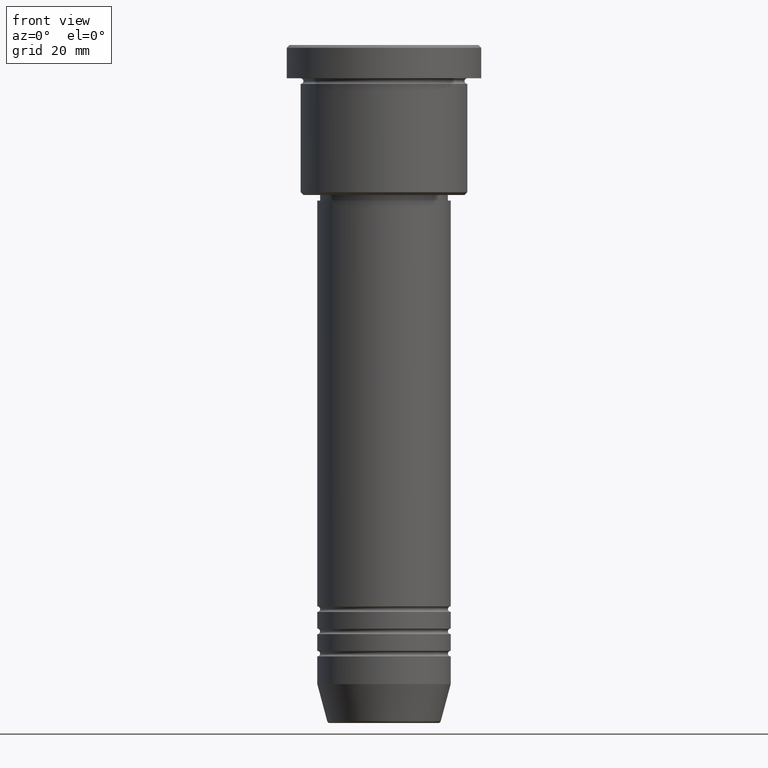
[diagram: clean part render]
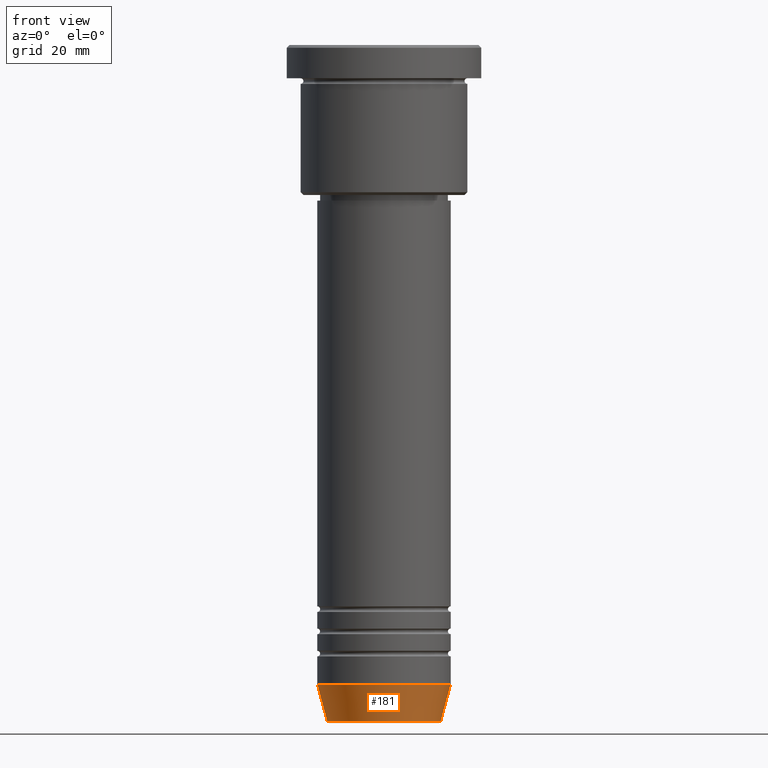
[diagram: same view with one face highlighted and labeled with its STEP entity id]
A machine part, front view. The second image highlights one B-rep face of the part: STEP entity #181.
In plain terms, the highlighted conical surface has half-angle 15 deg.
Its self-contained STEP definition (entity closure, byte-faithful):
#1 = CARTESIAN_POINT ( 'NONE',  ( -12.00000000000000000, 1.469576158976823947E-15, -115.0000000000000000 ) ) ;
#13 = CARTESIAN_POINT ( 'NONE',  ( 0.000000000000000000, 0.000000000000000000, -115.0000000000000000 ) ) ;
#58 = CONICAL_SURFACE ( 'NONE', #338, 12.00000000000000000, 0.2617993877991500740 ) ;
#69 = ORIENTED_EDGE ( 'NONE', *, *, #167, .T. ) ;
#76 = EDGE_CURVE ( 'NONE', #223, #233, #1120, .T. ) ;
#113 = CARTESIAN_POINT ( 'NONE',  ( -12.00000000000000000, 1.469576158976823947E-15, -115.0000000000000000 ) ) ;
#116 = AXIS2_PLACEMENT_3D ( 'NONE', #13, #914, #447 ) ;
#167 = EDGE_CURVE ( 'NONE', #459, #226, #935, .T. ) ;
#181 = ADVANCED_FACE ( 'NONE', ( #1129 ), #58, .T. ) ;
#223 = VERTEX_POINT ( 'NONE', #113 ) ;
#226 = VERTEX_POINT ( 'NONE', #290 ) ;
#233 = VERTEX_POINT ( 'NONE', #391 ) ;
#290 = CARTESIAN_POINT ( 'NONE',  ( 10.22365507213718949, 0.000000000000000000, -121.6294095225512564 ) ) ;
#338 = AXIS2_PLACEMENT_3D ( 'NONE', #580, #373, #943 ) ;
#355 = DIRECTION ( 'NONE',  ( -0.000000000000000000, -0.000000000000000000, 1.000000000000000000 ) ) ;
#373 = DIRECTION ( 'NONE',  ( -0.000000000000000000, -0.000000000000000000, 1.000000000000000000 ) ) ;
#382 = DIRECTION ( 'NONE',  ( -0.2588190451025213501, 3.169619151431772337E-17, 0.9659258262890680902 ) ) ;
#391 = CARTESIAN_POINT ( 'NONE',  ( 12.00000000000000000, 0.000000000000000000, -115.0000000000000000 ) ) ;
#432 = EDGE_CURVE ( 'NONE', #459, #223, #446, .T. ) ;
#446 = LINE ( 'NONE', #1, #917 ) ;
#447 = DIRECTION ( 'NONE',  ( 1.000000000000000000, 0.000000000000000000, 0.000000000000000000 ) ) ;
#459 = VERTEX_POINT ( 'NONE', #839 ) ;
#485 = ORIENTED_EDGE ( 'NONE', *, *, #76, .F. ) ;
#493 = CARTESIAN_POINT ( 'NONE',  ( 12.00000000000000000, 0.000000000000000000, -115.0000000000000000 ) ) ;
#541 = CARTESIAN_POINT ( 'NONE',  ( 0.000000000000000000, 0.000000000000000000, -121.6294095225512564 ) ) ;
#566 = ORIENTED_EDGE ( 'NONE', *, *, #432, .F. ) ;
#568 = VECTOR ( 'NONE', #1152, 1000.000000000000000 ) ;
#580 = CARTESIAN_POINT ( 'NONE',  ( 0.000000000000000000, 0.000000000000000000, -115.0000000000000000 ) ) ;
#601 = EDGE_CURVE ( 'NONE', #226, #233, #952, .T. ) ;
#679 = EDGE_LOOP ( 'NONE', ( #566, #69, #779, #485 ) ) ;
#723 = DIRECTION ( 'NONE',  ( 1.000000000000000000, 0.000000000000000000, 0.000000000000000000 ) ) ;
#779 = ORIENTED_EDGE ( 'NONE', *, *, #601, .T. ) ;
#839 = CARTESIAN_POINT ( 'NONE',  ( -10.22365507213718949, 1.360806402472382744E-15, -121.6294095225512564 ) ) ;
#914 = DIRECTION ( 'NONE',  ( -0.000000000000000000, -0.000000000000000000, 1.000000000000000000 ) ) ;
#917 = VECTOR ( 'NONE', #382, 1000.000000000000000 ) ;
#935 = CIRCLE ( 'NONE', #1122, 10.22365507213718949 ) ;
#943 = DIRECTION ( 'NONE',  ( 1.000000000000000000, 0.000000000000000000, 0.000000000000000000 ) ) ;
#952 = LINE ( 'NONE', #493, #568 ) ;
#1120 = CIRCLE ( 'NONE', #116, 12.00000000000000000 ) ;
#1122 = AXIS2_PLACEMENT_3D ( 'NONE', #541, #355, #723 ) ;
#1129 = FACE_OUTER_BOUND ( 'NONE', #679, .T. ) ;
#1152 = DIRECTION ( 'NONE',  ( 0.2588190451025213501, 0.000000000000000000, 0.9659258262890680902 ) ) ;